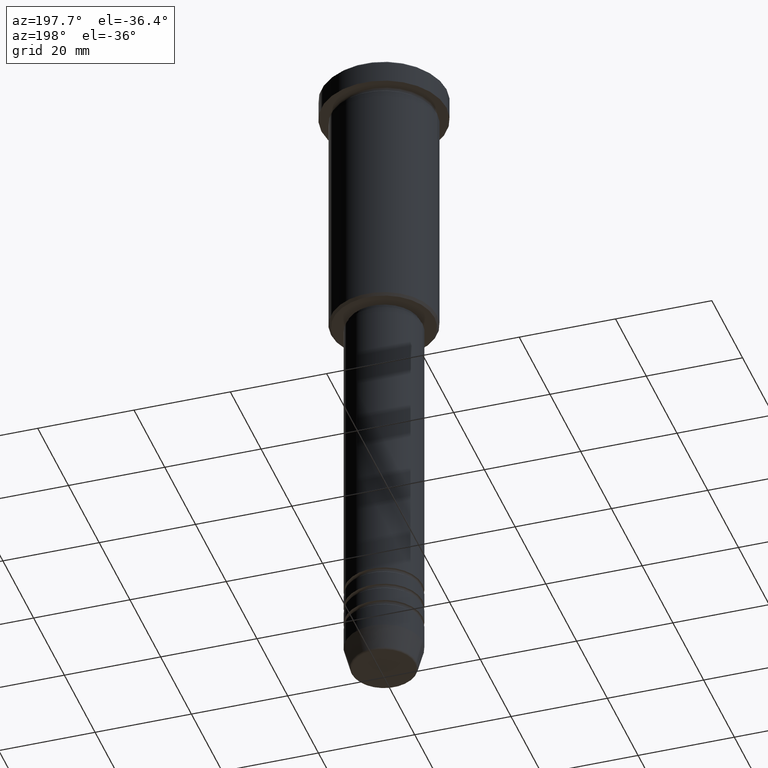
[diagram: clean part render]
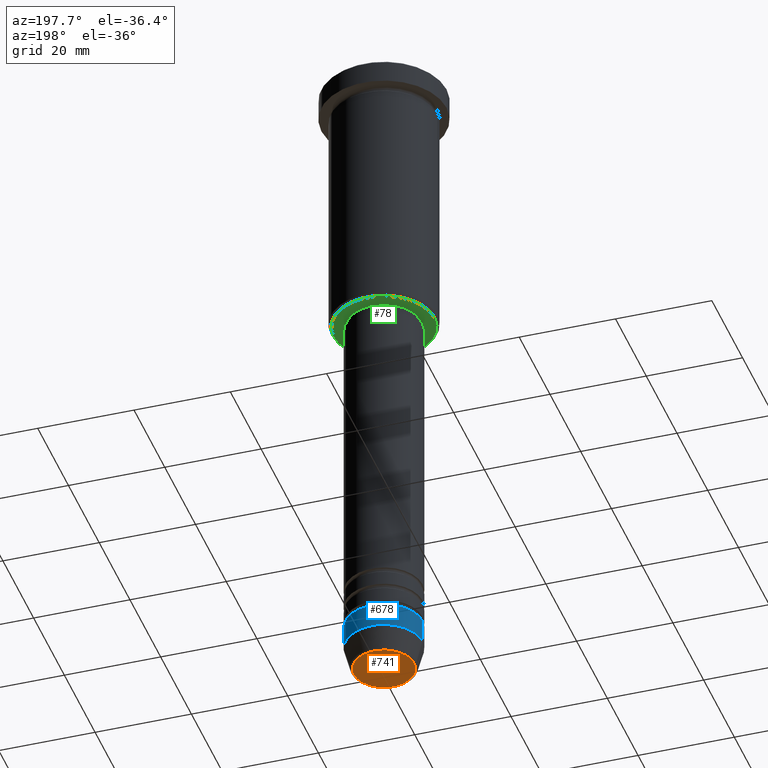
[diagram: same view with three faces highlighted in distinct colors, each labeled with its STEP entity id]
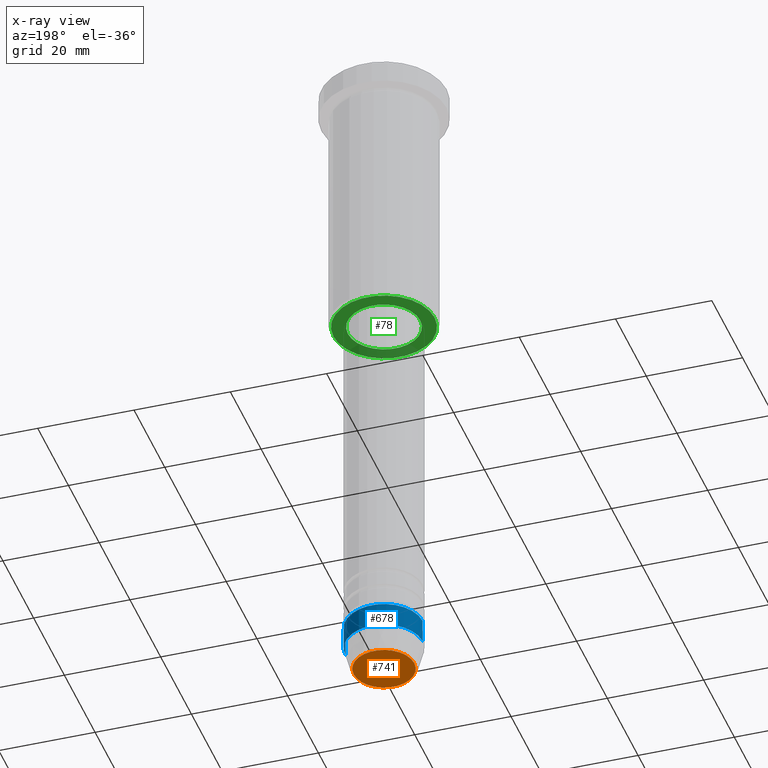
[diagram: x-ray of the same camera — body ghosted, the three highlighted faces saturated]
A machine part, auxiliary view with three faces highlighted in distinct colors.
The next image is the same camera in x-ray (body ghosted, the three faces saturated) — at least one of them is partly hidden behind the body in this view.
Their STEP definitions:

[orange] entity #741 — the highlighted planar face has unit normal (0, -0, 1).
#65 = DIRECTION ( 'NONE',  ( 0.000000000000000000, 0.000000000000000000, -1.000000000000000000 ) ) ;
#131 = CARTESIAN_POINT ( 'NONE',  ( 0.000000000000000000, 0.000000000000000000, -140.0000000000000000 ) ) ;
#238 = EDGE_LOOP ( 'NONE', ( #600, #398 ) ) ;
#270 = CARTESIAN_POINT ( 'NONE',  ( 6.276590543854903892, 0.000000000000000000, -140.0000000000000000 ) ) ;
#323 = DIRECTION ( 'NONE',  ( 0.000000000000000000, -0.000000000000000000, 1.000000000000000000 ) ) ;
#379 = CIRCLE ( 'NONE', #636, 6.276590543854903892 ) ;
#398 = ORIENTED_EDGE ( 'NONE', *, *, #930, .T. ) ;
#409 = FACE_OUTER_BOUND ( 'NONE', #238, .T. ) ;
#428 = AXIS2_PLACEMENT_3D ( 'NONE', #131, #323, #771 ) ;
#600 = ORIENTED_EDGE ( 'NONE', *, *, #1091, .T. ) ;
#636 = AXIS2_PLACEMENT_3D ( 'NONE', #864, #839, #769 ) ;
#741 = ADVANCED_FACE ( 'NONE', ( #409 ), #1117, .F. ) ;
#769 = DIRECTION ( 'NONE',  ( 1.000000000000000000, 0.000000000000000000, 0.000000000000000000 ) ) ;
#771 = DIRECTION ( 'NONE',  ( 1.000000000000000000, 0.000000000000000000, 0.000000000000000000 ) ) ;
#773 = VERTEX_POINT ( 'NONE', #880 ) ;
#799 = CARTESIAN_POINT ( 'NONE',  ( 0.000000000000000000, 0.000000000000000000, -140.0000000000000000 ) ) ;
#837 = AXIS2_PLACEMENT_3D ( 'NONE', #799, #65, #1166 ) ;
#839 = DIRECTION ( 'NONE',  ( 0.000000000000000000, 0.000000000000000000, -1.000000000000000000 ) ) ;
#864 = CARTESIAN_POINT ( 'NONE',  ( 0.000000000000000000, 0.000000000000000000, -140.0000000000000000 ) ) ;
#880 = CARTESIAN_POINT ( 'NONE',  ( -6.276590543854903892, 7.982336011935122327E-16, -140.0000000000000000 ) ) ;
#930 = EDGE_CURVE ( 'NONE', #773, #1110, #379, .T. ) ;
#1091 = EDGE_CURVE ( 'NONE', #1110, #773, #1103, .T. ) ;
#1103 = CIRCLE ( 'NONE', #837, 6.276590543854903892 ) ;
#1110 = VERTEX_POINT ( 'NONE', #270 ) ;
#1117 = PLANE ( 'NONE',  #428 ) ;
#1166 = DIRECTION ( 'NONE',  ( 1.000000000000000000, 0.000000000000000000, 0.000000000000000000 ) ) ;

[blue] entity #678 — the highlighted cylindrical surface (partial cylindrical patch) has radius 8 mm, axis along (-0, -0, 1).
#1 = CARTESIAN_POINT ( 'NONE',  ( -8.000000000000000000, 9.797174393178825657E-16, -130.0000000000000000 ) ) ;
#17 = VECTOR ( 'NONE', #642, 1000.000000000000000 ) ;
#28 = VERTEX_POINT ( 'NONE', #276 ) ;
#45 = EDGE_LOOP ( 'NONE', ( #848, #245, #483, #747 ) ) ;
#79 = EDGE_CURVE ( 'NONE', #28, #1093, #237, .T. ) ;
#86 = DIRECTION ( 'NONE',  ( -0.000000000000000000, -0.000000000000000000, 1.000000000000000000 ) ) ;
#91 = LINE ( 'NONE', #1180, #875 ) ;
#190 = CYLINDRICAL_SURFACE ( 'NONE', #856, 8.000000000000000000 ) ;
#229 = VERTEX_POINT ( 'NONE', #639 ) ;
#237 = CIRCLE ( 'NONE', #901, 8.000000000000000000 ) ;
#245 = ORIENTED_EDGE ( 'NONE', *, *, #1087, .T. ) ;
#275 = LINE ( 'NONE', #893, #17 ) ;
#276 = CARTESIAN_POINT ( 'NONE',  ( 8.000000000000000000, 0.000000000000000000, -135.0000000000000000 ) ) ;
#281 = CARTESIAN_POINT ( 'NONE',  ( 0.000000000000000000, 0.000000000000000000, 0.000000000000000000 ) ) ;
#293 = CARTESIAN_POINT ( 'NONE',  ( 0.000000000000000000, 0.000000000000000000, -130.0000000000000000 ) ) ;
#356 = CARTESIAN_POINT ( 'NONE',  ( -8.000000000000000000, 9.797174393178825657E-16, -135.0000000000000000 ) ) ;
#391 = DIRECTION ( 'NONE',  ( 1.000000000000000000, 0.000000000000000000, 0.000000000000000000 ) ) ;
#463 = DIRECTION ( 'NONE',  ( -0.000000000000000000, -0.000000000000000000, 1.000000000000000000 ) ) ;
#465 = DIRECTION ( 'NONE',  ( 1.000000000000000000, 0.000000000000000000, 0.000000000000000000 ) ) ;
#483 = ORIENTED_EDGE ( 'NONE', *, *, #1134, .F. ) ;
#485 = DIRECTION ( 'NONE',  ( -0.000000000000000000, -0.000000000000000000, 1.000000000000000000 ) ) ;
#528 = VERTEX_POINT ( 'NONE', #1 ) ;
#561 = DIRECTION ( 'NONE',  ( 1.000000000000000000, 0.000000000000000000, 0.000000000000000000 ) ) ;
#639 = CARTESIAN_POINT ( 'NONE',  ( 8.000000000000000000, 0.000000000000000000, -130.0000000000000000 ) ) ;
#642 = DIRECTION ( 'NONE',  ( -0.000000000000000000, -0.000000000000000000, 1.000000000000000000 ) ) ;
#652 = DIRECTION ( 'NONE',  ( -0.000000000000000000, -0.000000000000000000, 1.000000000000000000 ) ) ;
#678 = ADVANCED_FACE ( 'NONE', ( #823 ), #190, .T. ) ;
#705 = AXIS2_PLACEMENT_3D ( 'NONE', #293, #485, #391 ) ;
#724 = EDGE_CURVE ( 'NONE', #28, #229, #91, .T. ) ;
#737 = CARTESIAN_POINT ( 'NONE',  ( 0.000000000000000000, 0.000000000000000000, -135.0000000000000000 ) ) ;
#747 = ORIENTED_EDGE ( 'NONE', *, *, #724, .F. ) ;
#823 = FACE_OUTER_BOUND ( 'NONE', #45, .T. ) ;
#848 = ORIENTED_EDGE ( 'NONE', *, *, #79, .T. ) ;
#851 = CIRCLE ( 'NONE', #705, 8.000000000000000000 ) ;
#856 = AXIS2_PLACEMENT_3D ( 'NONE', #281, #86, #561 ) ;
#875 = VECTOR ( 'NONE', #463, 1000.000000000000000 ) ;
#893 = CARTESIAN_POINT ( 'NONE',  ( -8.000000000000000000, 9.797174393178825657E-16, 0.000000000000000000 ) ) ;
#901 = AXIS2_PLACEMENT_3D ( 'NONE', #737, #652, #465 ) ;
#1087 = EDGE_CURVE ( 'NONE', #1093, #528, #275, .T. ) ;
#1093 = VERTEX_POINT ( 'NONE', #356 ) ;
#1134 = EDGE_CURVE ( 'NONE', #229, #528, #851, .T. ) ;
#1180 = CARTESIAN_POINT ( 'NONE',  ( 8.000000000000000000, 0.000000000000000000, 0.000000000000000000 ) ) ;

[green] entity #78 — the highlighted planar face has unit normal (0, 0, -1).
#4 = CARTESIAN_POINT ( 'NONE',  ( 0.000000000000000000, 11.00000000000000000, -56.00000000000000711 ) ) ;
#35 = DIRECTION ( 'NONE',  ( 0.000000000000000000, 0.000000000000000000, -1.000000000000000000 ) ) ;
#78 = ADVANCED_FACE ( 'NONE', ( #366, #735 ), #820, .T. ) ;
#85 = AXIS2_PLACEMENT_3D ( 'NONE', #579, #926, #106 ) ;
#103 = CARTESIAN_POINT ( 'NONE',  ( 0.000000000000000000, 0.000000000000000000, -56.00000000000000711 ) ) ;
#106 = DIRECTION ( 'NONE',  ( -1.000000000000000000, 0.000000000000000000, 0.000000000000000000 ) ) ;
#202 = VERTEX_POINT ( 'NONE', #904 ) ;
#317 = VERTEX_POINT ( 'NONE', #344 ) ;
#344 = CARTESIAN_POINT ( 'NONE',  ( -7.500000000000000000, 9.184850993605147944E-16, -56.00000000000000711 ) ) ;
#345 = CIRCLE ( 'NONE', #85, 10.50000000000000888 ) ;
#357 = EDGE_CURVE ( 'NONE', #202, #317, #840, .T. ) ;
#366 = FACE_OUTER_BOUND ( 'NONE', #575, .T. ) ;
#370 = DIRECTION ( 'NONE',  ( 0.000000000000000000, 0.000000000000000000, -1.000000000000000000 ) ) ;
#372 = EDGE_LOOP ( 'NONE', ( #674, #1119 ) ) ;
#387 = CARTESIAN_POINT ( 'NONE',  ( -10.50000000000000888, 1.316495309083405209E-15, -56.00000000000000711 ) ) ;
#400 = DIRECTION ( 'NONE',  ( 1.000000000000000000, 0.000000000000000000, 0.000000000000000000 ) ) ;
#452 = ORIENTED_EDGE ( 'NONE', *, *, #1173, .T. ) ;
#475 = ORIENTED_EDGE ( 'NONE', *, *, #681, .T. ) ;
#575 = EDGE_LOOP ( 'NONE', ( #475, #452 ) ) ;
#579 = CARTESIAN_POINT ( 'NONE',  ( 0.000000000000000000, 0.000000000000000000, -56.00000000000000711 ) ) ;
#602 = CARTESIAN_POINT ( 'NONE',  ( 10.50000000000000888, 0.000000000000000000, -56.00000000000000711 ) ) ;
#604 = AXIS2_PLACEMENT_3D ( 'NONE', #4, #370, #1073 ) ;
#618 = VERTEX_POINT ( 'NONE', #387 ) ;
#653 = VERTEX_POINT ( 'NONE', #602 ) ;
#671 = AXIS2_PLACEMENT_3D ( 'NONE', #949, #35, #1111 ) ;
#674 = ORIENTED_EDGE ( 'NONE', *, *, #357, .T. ) ;
#681 = EDGE_CURVE ( 'NONE', #653, #618, #345, .T. ) ;
#726 = EDGE_CURVE ( 'NONE', #317, #202, #959, .T. ) ;
#727 = CARTESIAN_POINT ( 'NONE',  ( 0.000000000000000000, 0.000000000000000000, -56.00000000000000711 ) ) ;
#735 = FACE_BOUND ( 'NONE', #372, .T. ) ;
#820 = PLANE ( 'NONE',  #604 ) ;
#840 = CIRCLE ( 'NONE', #878, 7.500000000000000000 ) ;
#878 = AXIS2_PLACEMENT_3D ( 'NONE', #727, #1080, #1098 ) ;
#904 = CARTESIAN_POINT ( 'NONE',  ( 7.500000000000000000, 0.000000000000000000, -56.00000000000000711 ) ) ;
#926 = DIRECTION ( 'NONE',  ( 0.000000000000000000, 0.000000000000000000, -1.000000000000000000 ) ) ;
#948 = DIRECTION ( 'NONE',  ( -0.000000000000000000, -0.000000000000000000, 1.000000000000000000 ) ) ;
#949 = CARTESIAN_POINT ( 'NONE',  ( 0.000000000000000000, 0.000000000000000000, -56.00000000000000711 ) ) ;
#959 = CIRCLE ( 'NONE', #1011, 7.500000000000000000 ) ;
#1011 = AXIS2_PLACEMENT_3D ( 'NONE', #103, #948, #400 ) ;
#1073 = DIRECTION ( 'NONE',  ( -1.000000000000000000, 0.000000000000000000, -0.000000000000000000 ) ) ;
#1080 = DIRECTION ( 'NONE',  ( -0.000000000000000000, -0.000000000000000000, 1.000000000000000000 ) ) ;
#1098 = DIRECTION ( 'NONE',  ( 1.000000000000000000, 0.000000000000000000, 0.000000000000000000 ) ) ;
#1111 = DIRECTION ( 'NONE',  ( -1.000000000000000000, 0.000000000000000000, 0.000000000000000000 ) ) ;
#1118 = CIRCLE ( 'NONE', #671, 10.50000000000000888 ) ;
#1119 = ORIENTED_EDGE ( 'NONE', *, *, #726, .T. ) ;
#1173 = EDGE_CURVE ( 'NONE', #618, #653, #1118, .T. ) ;